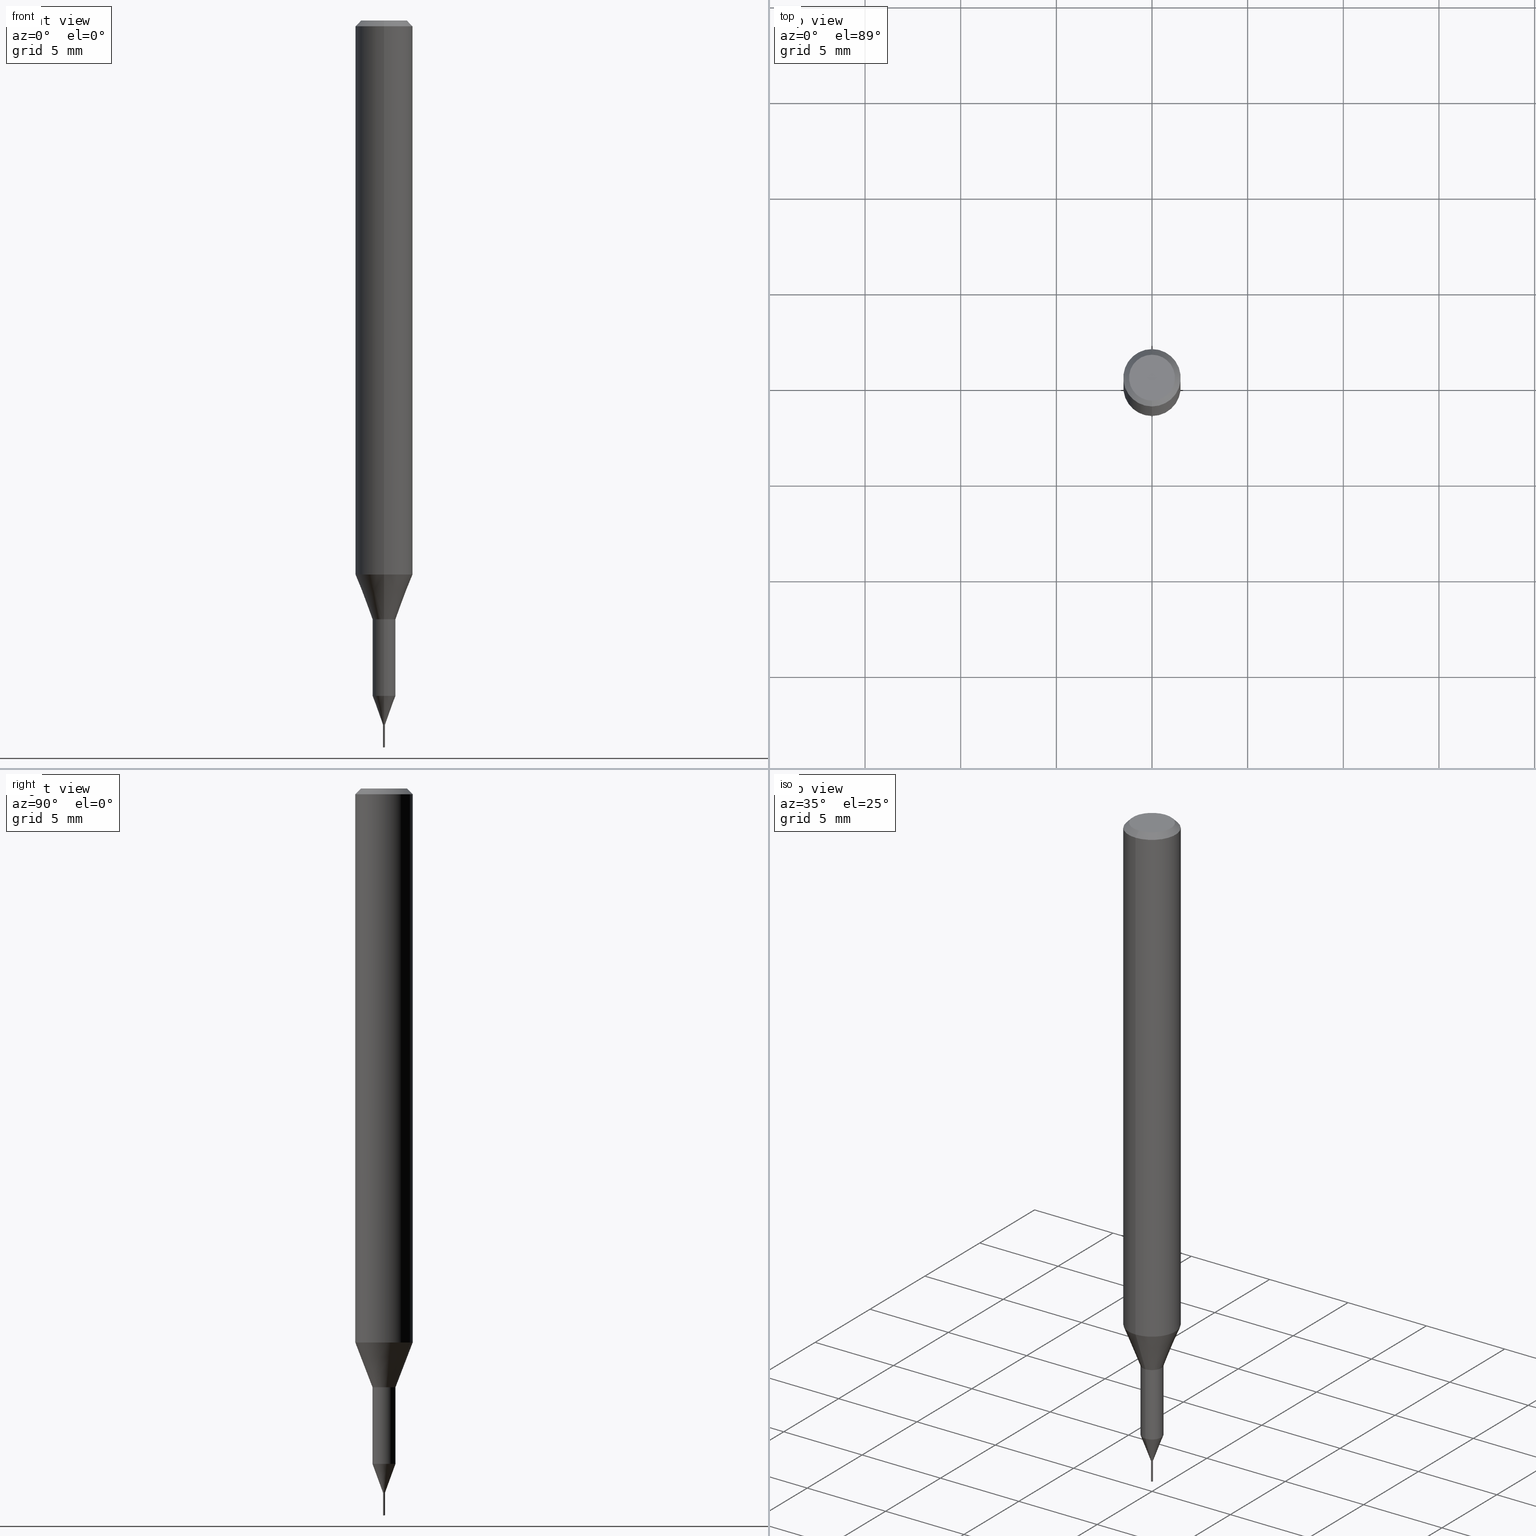
[diagram: canonical four-view strip — front | top / right | iso, engineering-drawing reading convention]
A machine part, canonical four-view strip (front | top / right | iso — engineering-drawing reading convention). The complete STEP part file that produces these views, byte-faithful:
ISO-10303-21;
HEADER;
FILE_DESCRIPTION(('no description'),'unknown implementation level');
FILE_NAME('C-UMD2011-012-Huellk.stp','  ',('CIMSOURCE GmbH'),('CADClick - KiM GmbH - www.kimweb.de'),'unknown preprocess','ACIS','unknown authorization');
FILE_SCHEMA(('automotive_design'));
ENDSEC;
DATA;
#1=MECHANICAL_DESIGN_GEOMETRIC_PRESENTATION_REPRESENTATION(' ',(#14,#15,#16,#17,#18,#19,#20,#21,#22,#23,#24,#25,#26,#27,#28,#29,#30,#31,#32,#33,#34,#35,#36,#37,#38,#39,#40,#41,#42,#43,#44,#45,#46,#47,#48,#49,#50,#51,#52,#53,#54,#55,#56,#57,#58,#59,#60,#61,#62,#63,#64,#65,#66,#67,#68,#69,#70,#71,#72,#73,#74,#75,#76,#77,#78,#79,#80,#81,#82,#83,#84,#85,#86,#87,#88,#89,#90,#91,#92),#10);
#2=PRODUCT_DEFINITION_CONTEXT('',#93,'design');
#3=APPLICATION_PROTOCOL_DEFINITION('INTERNATIONAL STANDARD','automotive_design',1994,#93);
#4=PRODUCT_CATEGORY_RELATIONSHIP('NONE','NONE',#94,#95);
#5=SHAPE_DEFINITION_REPRESENTATION(#96,#97);
#6=PRODUCT_DEFINITION_CONTEXT('',#98,'design');
#7=APPLICATION_PROTOCOL_DEFINITION('INTERNATIONAL STANDARD','automotive_design',1994,#98);
#8=PRODUCT_CATEGORY_RELATIONSHIP('NONE','NONE',#99,#100);
#9=SHAPE_DEFINITION_REPRESENTATION(#101,#102);
#10= (GEOMETRIC_REPRESENTATION_CONTEXT(3)GLOBAL_UNCERTAINTY_ASSIGNED_CONTEXT((#105))GLOBAL_UNIT_ASSIGNED_CONTEXT((#107,#108,#109))REPRESENTATION_CONTEXT('NONE','WORKSPACE'));
#14=STYLED_ITEM('',(#111),#112);
#15=STYLED_ITEM('',(#113),#114);
#16=STYLED_ITEM('',(#115),#116);
#17=STYLED_ITEM('',(#117),#118);
#18=STYLED_ITEM('',(#119),#120);
#19=STYLED_ITEM('',(#121),#122);
#20=STYLED_ITEM('',(#123),#124);
#21=STYLED_ITEM('',(#125),#126);
#22=STYLED_ITEM('',(#127),#128);
#23=STYLED_ITEM('',(#129),#130);
#24=STYLED_ITEM('',(#131),#132);
#25=STYLED_ITEM('',(#133),#134);
#26=STYLED_ITEM('',(#135),#136);
#27=STYLED_ITEM('',(#137),#138);
#28=STYLED_ITEM('',(#139),#140);
#29=STYLED_ITEM('',(#141),#142);
#30=STYLED_ITEM('',(#143),#144);
#31=STYLED_ITEM('',(#145),#146);
#32=STYLED_ITEM('',(#147),#148);
#33=STYLED_ITEM('',(#149),#150);
#34=STYLED_ITEM('',(#151),#152);
#35=STYLED_ITEM('',(#153),#154);
#36=STYLED_ITEM('',(#155),#156);
#37=STYLED_ITEM('',(#157),#158);
#38=STYLED_ITEM('',(#159),#160);
#39=STYLED_ITEM('',(#161),#162);
#40=STYLED_ITEM('',(#163),#164);
#41=STYLED_ITEM('',(#165),#166);
#42=STYLED_ITEM('',(#167),#168);
#43=STYLED_ITEM('',(#169),#170);
#44=STYLED_ITEM('',(#171),#172);
#45=STYLED_ITEM('',(#173),#174);
#46=STYLED_ITEM('',(#175),#176);
#47=STYLED_ITEM('',(#177),#178);
#48=STYLED_ITEM('',(#179),#180);
#49=STYLED_ITEM('',(#181),#182);
#50=STYLED_ITEM('',(#183),#184);
#51=STYLED_ITEM('',(#185),#186);
#52=STYLED_ITEM('',(#187),#188);
#53=STYLED_ITEM('',(#189),#190);
#54=STYLED_ITEM('',(#191),#192);
#55=STYLED_ITEM('',(#193),#194);
#56=STYLED_ITEM('',(#195),#196);
#57=STYLED_ITEM('',(#197),#198);
#58=STYLED_ITEM('',(#199),#200);
#59=STYLED_ITEM('',(#201),#202);
#60=STYLED_ITEM('',(#203),#204);
#61=STYLED_ITEM('',(#205),#206);
#62=STYLED_ITEM('',(#207),#208);
#63=STYLED_ITEM('',(#209),#210);
#64=STYLED_ITEM('',(#211),#212);
#65=STYLED_ITEM('',(#213),#214);
#66=STYLED_ITEM('',(#215),#216);
#67=STYLED_ITEM('',(#217),#218);
#68=STYLED_ITEM('',(#219),#220);
#69=STYLED_ITEM('',(#221),#222);
#70=STYLED_ITEM('',(#223),#224);
#71=STYLED_ITEM('',(#225),#226);
#72=STYLED_ITEM('',(#227),#228);
#73=STYLED_ITEM('',(#229),#230);
#74=STYLED_ITEM('',(#231),#232);
#75=STYLED_ITEM('',(#233),#234);
#76=STYLED_ITEM('',(#235),#236);
#77=STYLED_ITEM('',(#237),#238);
#78=STYLED_ITEM('',(#239),#240);
#79=STYLED_ITEM('',(#241),#242);
#80=STYLED_ITEM('',(#243),#244);
#81=STYLED_ITEM('',(#245),#246);
#82=STYLED_ITEM('',(#247),#248);
#83=STYLED_ITEM('',(#249),#250);
#84=STYLED_ITEM('',(#251),#252);
#85=STYLED_ITEM('',(#253),#254);
#86=STYLED_ITEM('',(#255),#256);
#87=STYLED_ITEM('',(#257),#258);
#88=STYLED_ITEM('',(#259),#260);
#89=STYLED_ITEM('',(#261),#262);
#90=STYLED_ITEM('',(#263),#264);
#91=STYLED_ITEM('',(#265),#266);
#92=STYLED_ITEM('',(#267),#268);
#93=APPLICATION_CONTEXT(' ');
#94=PRODUCT_CATEGORY('part','NONE');
#95=PRODUCT_RELATED_PRODUCT_CATEGORY('detail',' ',(#269));
#96=PRODUCT_DEFINITION_SHAPE('NONE','NONE',#270);
#97=ADVANCED_BREP_SHAPE_REPRESENTATION('1',(#216,#271),#10);
#98=APPLICATION_CONTEXT(' ');
#99=PRODUCT_CATEGORY('part','NONE');
#100=PRODUCT_RELATED_PRODUCT_CATEGORY('detail',' ',(#272));
#101=PRODUCT_DEFINITION_SHAPE('NONE','NONE',#273);
#102=ADVANCED_BREP_SHAPE_REPRESENTATION('2',(#118,#274),#10);
#105=UNCERTAINTY_MEASURE_WITH_UNIT(LENGTH_MEASURE(1.0E-006),#107,'','');
#107= (CONVERSION_BASED_UNIT('MILLIMETRE',#277)LENGTH_UNIT()NAMED_UNIT(#280));
#108= (NAMED_UNIT(#282)PLANE_ANGLE_UNIT()SI_UNIT($,.RADIAN.));
#109= (NAMED_UNIT(#282)SOLID_ANGLE_UNIT()SI_UNIT($,.STERADIAN.));
#111=PRESENTATION_STYLE_ASSIGNMENT((#288));
#112=EDGE_CURVE('',#142,#258,#289,.T.);
#113=PRESENTATION_STYLE_ASSIGNMENT((#290));
#114=EDGE_CURVE('',#144,#232,#291,.T.);
#115=PRESENTATION_STYLE_ASSIGNMENT((#292));
#116=EDGE_CURVE('',#196,#148,#293,.T.);
#117=PRESENTATION_STYLE_ASSIGNMENT((#294));
#118=MANIFOLD_SOLID_BREP('2',#295);
#119=PRESENTATION_STYLE_ASSIGNMENT((#296));
#120=EDGE_CURVE('',#172,#214,#297,.T.);
#121=PRESENTATION_STYLE_ASSIGNMENT((#298));
#122=EDGE_CURVE('',#236,#196,#299,.T.);
#123=PRESENTATION_STYLE_ASSIGNMENT((#300));
#124=ADVANCED_FACE('',(#301),#302,.T.);
#125=PRESENTATION_STYLE_ASSIGNMENT((#303));
#126=ADVANCED_FACE('',(#304),#305,.T.);
#127=PRESENTATION_STYLE_ASSIGNMENT((#306));
#128=EDGE_CURVE('',#258,#246,#307,.T.);
#129=PRESENTATION_STYLE_ASSIGNMENT((#308));
#130=EDGE_CURVE('',#268,#214,#309,.T.);
#131=PRESENTATION_STYLE_ASSIGNMENT((#310));
#132=ADVANCED_FACE('',(#311),#312,.T.);
#133=PRESENTATION_STYLE_ASSIGNMENT((#313));
#134=VERTEX_POINT('',#314);
#135=PRESENTATION_STYLE_ASSIGNMENT((#315));
#136=ADVANCED_FACE('',(#316),#317,.T.);
#137=PRESENTATION_STYLE_ASSIGNMENT((#318));
#138=EDGE_CURVE('',#134,#172,#319,.T.);
#139=PRESENTATION_STYLE_ASSIGNMENT((#320));
#140=EDGE_CURVE('',#258,#142,#321,.T.);
#141=PRESENTATION_STYLE_ASSIGNMENT((#322));
#142=VERTEX_POINT('',#323);
#143=PRESENTATION_STYLE_ASSIGNMENT((#324));
#144=VERTEX_POINT('',#325);
#145=PRESENTATION_STYLE_ASSIGNMENT((#326));
#146=ADVANCED_FACE('',(#327,#328),#329,.T.);
#147=PRESENTATION_STYLE_ASSIGNMENT((#330));
#148=VERTEX_POINT('',#331);
#149=PRESENTATION_STYLE_ASSIGNMENT((#332));
#150=EDGE_CURVE('',#222,#208,#333,.T.);
#151=PRESENTATION_STYLE_ASSIGNMENT((#334));
#152=EDGE_CURVE('',#238,#246,#335,.T.);
#153=PRESENTATION_STYLE_ASSIGNMENT((#336));
#154=ADVANCED_FACE('',(#337),#338,.T.);
#155=PRESENTATION_STYLE_ASSIGNMENT((#339));
#156=VERTEX_POINT('',#340);
#157=PRESENTATION_STYLE_ASSIGNMENT((#341));
#158=ADVANCED_FACE('',(#342),#343,.T.);
#159=PRESENTATION_STYLE_ASSIGNMENT((#344));
#160=VERTEX_POINT('',#345);
#161=PRESENTATION_STYLE_ASSIGNMENT((#346));
#162=EDGE_CURVE('',#134,#222,#347,.T.);
#163=PRESENTATION_STYLE_ASSIGNMENT((#348));
#164=EDGE_CURVE('',#176,#182,#349,.T.);
#165=PRESENTATION_STYLE_ASSIGNMENT((#350));
#166=EDGE_CURVE('',#214,#172,#351,.T.);
#167=PRESENTATION_STYLE_ASSIGNMENT((#352));
#168=ADVANCED_FACE('',(#353),#354,.T.);
#169=PRESENTATION_STYLE_ASSIGNMENT((#355));
#170=ADVANCED_FACE('',(#356),#357,.T.);
#171=PRESENTATION_STYLE_ASSIGNMENT((#358));
#172=VERTEX_POINT('',#359);
#173=PRESENTATION_STYLE_ASSIGNMENT((#360));
#174=EDGE_CURVE('',#214,#222,#361,.T.);
#175=PRESENTATION_STYLE_ASSIGNMENT((#362));
#176=VERTEX_POINT('',#363);
#177=PRESENTATION_STYLE_ASSIGNMENT((#364));
#178=EDGE_CURVE('',#248,#238,#365,.T.);
#179=PRESENTATION_STYLE_ASSIGNMENT((#366));
#180=ADVANCED_FACE('',(#367),#368,.T.);
#181=PRESENTATION_STYLE_ASSIGNMENT((#369));
#182=VERTEX_POINT('',#370);
#183=PRESENTATION_STYLE_ASSIGNMENT((#371));
#184=ADVANCED_FACE('',(#372),#373,.T.);
#185=PRESENTATION_STYLE_ASSIGNMENT((#374));
#186=EDGE_CURVE('',#160,#208,#375,.T.);
#187=PRESENTATION_STYLE_ASSIGNMENT((#376));
#188=EDGE_CURVE('',#238,#142,#377,.T.);
#189=PRESENTATION_STYLE_ASSIGNMENT((#378));
#190=EDGE_CURVE('',#268,#206,#379,.T.);
#191=PRESENTATION_STYLE_ASSIGNMENT((#380));
#192=ADVANCED_FACE('',(#381),#382,.T.);
#193=PRESENTATION_STYLE_ASSIGNMENT((#383));
#194=EDGE_CURVE('',#208,#160,#384,.T.);
#195=PRESENTATION_STYLE_ASSIGNMENT((#385));
#196=VERTEX_POINT('',#386);
#197=PRESENTATION_STYLE_ASSIGNMENT((#387));
#198=EDGE_CURVE('',#232,#236,#388,.T.);
#199=PRESENTATION_STYLE_ASSIGNMENT((#389));
#200=EDGE_CURVE('',#222,#134,#390,.T.);
#201=PRESENTATION_STYLE_ASSIGNMENT((#391));
#202=ADVANCED_FACE('',(#392),#393,.T.);
#203=PRESENTATION_STYLE_ASSIGNMENT((#394));
#204=ADVANCED_FACE('',(#395),#396,.T.);
#205=PRESENTATION_STYLE_ASSIGNMENT((#397));
#206=VERTEX_POINT('',#398);
#207=PRESENTATION_STYLE_ASSIGNMENT((#399));
#208=VERTEX_POINT('',#400);
#209=PRESENTATION_STYLE_ASSIGNMENT((#401));
#210=EDGE_CURVE('',#236,#182,#402,.T.);
#211=PRESENTATION_STYLE_ASSIGNMENT((#403));
#212=EDGE_CURVE('',#182,#176,#404,.T.);
#213=PRESENTATION_STYLE_ASSIGNMENT((#405));
#214=VERTEX_POINT('',#406);
#215=PRESENTATION_STYLE_ASSIGNMENT((#407));
#216=MANIFOLD_SOLID_BREP('1',#408);
#217=PRESENTATION_STYLE_ASSIGNMENT((#409));
#218=ADVANCED_FACE('',(#410),#411,.T.);
#219=PRESENTATION_STYLE_ASSIGNMENT((#412));
#220=EDGE_CURVE('',#160,#134,#413,.T.);
#221=PRESENTATION_STYLE_ASSIGNMENT((#414));
#222=VERTEX_POINT('',#415);
#223=PRESENTATION_STYLE_ASSIGNMENT((#416));
#224=EDGE_CURVE('',#246,#238,#417,.T.);
#225=PRESENTATION_STYLE_ASSIGNMENT((#418));
#226=EDGE_CURVE('',#176,#196,#419,.T.);
#227=PRESENTATION_STYLE_ASSIGNMENT((#420));
#228=EDGE_CURVE('',#246,#156,#421,.T.);
#229=PRESENTATION_STYLE_ASSIGNMENT((#422));
#230=EDGE_CURVE('',#148,#144,#423,.T.);
#231=PRESENTATION_STYLE_ASSIGNMENT((#424));
#232=VERTEX_POINT('',#425);
#233=PRESENTATION_STYLE_ASSIGNMENT((#426));
#234=EDGE_CURVE('',#248,#156,#427,.T.);
#235=PRESENTATION_STYLE_ASSIGNMENT((#428));
#236=VERTEX_POINT('',#429);
#237=PRESENTATION_STYLE_ASSIGNMENT((#430));
#238=VERTEX_POINT('',#431);
#239=PRESENTATION_STYLE_ASSIGNMENT((#432));
#240=ADVANCED_FACE('',(#433),#434,.T.);
#241=PRESENTATION_STYLE_ASSIGNMENT((#435));
#242=EDGE_CURVE('',#172,#206,#436,.T.);
#243=PRESENTATION_STYLE_ASSIGNMENT((#437));
#244=ADVANCED_FACE('',(#438),#439,.T.);
#245=PRESENTATION_STYLE_ASSIGNMENT((#440));
#246=VERTEX_POINT('',#441);
#247=PRESENTATION_STYLE_ASSIGNMENT((#442));
#248=VERTEX_POINT('',#443);
#249=PRESENTATION_STYLE_ASSIGNMENT((#444));
#250=EDGE_CURVE('',#156,#248,#445,.T.);
#251=PRESENTATION_STYLE_ASSIGNMENT((#446));
#252=ADVANCED_FACE('',(#447),#448,.T.);
#253=PRESENTATION_STYLE_ASSIGNMENT((#449));
#254=EDGE_CURVE('',#206,#268,#450,.T.);
#255=PRESENTATION_STYLE_ASSIGNMENT((#451));
#256=ADVANCED_FACE('',(#452),#453,.T.);
#257=PRESENTATION_STYLE_ASSIGNMENT((#454));
#258=VERTEX_POINT('',#455);
#259=PRESENTATION_STYLE_ASSIGNMENT((#456));
#260=EDGE_CURVE('',#148,#232,#457,.T.);
#261=PRESENTATION_STYLE_ASSIGNMENT((#458));
#262=EDGE_CURVE('',#196,#236,#459,.T.);
#263=PRESENTATION_STYLE_ASSIGNMENT((#460));
#264=EDGE_CURVE('',#232,#148,#461,.T.);
#265=PRESENTATION_STYLE_ASSIGNMENT((#462));
#266=ADVANCED_FACE('',(#463),#464,.T.);
#267=PRESENTATION_STYLE_ASSIGNMENT((#465));
#268=VERTEX_POINT('',#466);
#269=PRODUCT('1','1','PART-1-DESC',(#467));
#270=PRODUCT_DEFINITION('NONE','NONE',#468,#2);
#271=AXIS2_PLACEMENT_3D('',#469,#470,#471);
#272=PRODUCT('2','2','PART-2-DESC',(#472));
#273=PRODUCT_DEFINITION('NONE','NONE',#473,#6);
#274=AXIS2_PLACEMENT_3D('',#474,#475,#476);
#277=LENGTH_MEASURE_WITH_UNIT(LENGTH_MEASURE(1.0),#477);
#280=DIMENSIONAL_EXPONENTS(1.0,0.0,0.0,0.0,0.0,0.0,0.0);
#282=DIMENSIONAL_EXPONENTS(0.0,0.0,0.0,0.0,0.0,0.0,0.0);
#288=CURVE_STYLE('',#478,POSITIVE_LENGTH_MEASURE(1.0E-006),#479);
#289=CIRCLE('',#480,0.0550364028056111);
#290=CURVE_STYLE('',#481,POSITIVE_LENGTH_MEASURE(1.0E-006),#482);
#291=LINE('',#483,#484);
#292=CURVE_STYLE('',#485,POSITIVE_LENGTH_MEASURE(1.0E-006),#486);
#293=LINE('',#487,#488);
#294=SURFACE_STYLE_USAGE(.BOTH.,#489);
#295=CLOSED_SHELL('',(#252,#218,#132,#158,#204,#154,#180));
#296=CURVE_STYLE('',#490,POSITIVE_LENGTH_MEASURE(1.0E-006),#491);
#297=CIRCLE('',#492,1.5);
#298=CURVE_STYLE('',#493,POSITIVE_LENGTH_MEASURE(1.0E-006),#494);
#299=CIRCLE('',#495,0.055);
#300=SURFACE_STYLE_USAGE(.BOTH.,#496);
#301=FACE_OUTER_BOUND('',#497,.T.);
#302=CONICAL_SURFACE('',#498,1.35,0.785398163397447);
#303=SURFACE_STYLE_USAGE(.BOTH.,#499);
#304=FACE_OUTER_BOUND('',#500,.T.);
#305=PLANE('',#501);
#306=CURVE_STYLE('',#502,POSITIVE_LENGTH_MEASURE(1.0E-006),#503);
#307=LINE('',#504,#505);
#308=CURVE_STYLE('',#506,POSITIVE_LENGTH_MEASURE(1.0E-006),#507);
#309=LINE('',#508,#509);
#310=SURFACE_STYLE_USAGE(.BOTH.,#510);
#311=FACE_OUTER_BOUND('',#511,.T.);
#312=CONICAL_SURFACE('',#512,0.0555182030728123,1.47460682041605);
#313=POINT_STYLE(' ',#513,POSITIVE_LENGTH_MEASURE(1.0E-006),#514);
#314=CARTESIAN_POINT('',(0.0,1.5,-0.300000000000001));
#315=SURFACE_STYLE_USAGE(.BOTH.,#515);
#316=FACE_OUTER_BOUND('',#516,.T.);
#317=CYLINDRICAL_SURFACE('',#517,0.59995);
#318=CURVE_STYLE('',#518,POSITIVE_LENGTH_MEASURE(1.0E-006),#519);
#319=LINE('',#520,#521);
#320=CURVE_STYLE('',#522,POSITIVE_LENGTH_MEASURE(1.0E-006),#523);
#321=CIRCLE('',#524,0.0550364028056111);
#322=POINT_STYLE(' ',#525,POSITIVE_LENGTH_MEASURE(1.0E-006),#526);
#323=CARTESIAN_POINT('',(0.0,0.0550364028056111,-36.7999));
#324=POINT_STYLE(' ',#527,POSITIVE_LENGTH_MEASURE(1.0E-006),#528);
#325=CARTESIAN_POINT('',(0.0,0.0,-38.0));
#326=SURFACE_STYLE_USAGE(.BOTH.,#529);
#327=FACE_BOUND('',#530,.T.);
#328=FACE_OUTER_BOUND('',#531,.T.);
#329=PLANE('',#532);
#330=POINT_STYLE(' ',#533,POSITIVE_LENGTH_MEASURE(1.0E-006),#534);
#331=CARTESIAN_POINT('',(-0.055,0.0,-37.98526279));
#332=CURVE_STYLE('',#535,POSITIVE_LENGTH_MEASURE(1.0E-006),#536);
#333=LINE('',#537,#538);
#334=CURVE_STYLE('',#539,POSITIVE_LENGTH_MEASURE(1.0E-006),#540);
#335=CIRCLE('',#541,0.59995);
#336=SURFACE_STYLE_USAGE(.BOTH.,#542);
#337=FACE_OUTER_BOUND('',#543,.T.);
#338=CYLINDRICAL_SURFACE('',#544,0.055);
#339=POINT_STYLE(' ',#545,POSITIVE_LENGTH_MEASURE(1.0E-006),#546);
#340=CARTESIAN_POINT('',(7.34702581975735E-017,-0.59995,-31.3));
#341=SURFACE_STYLE_USAGE(.BOTH.,#547);
#342=FACE_OUTER_BOUND('',#548,.T.);
#343=PLANE('',#549);
#344=POINT_STYLE(' ',#550,POSITIVE_LENGTH_MEASURE(1.0E-006),#551);
#345=CARTESIAN_POINT('',(0.0,1.2,0.0));
#346=CURVE_STYLE('',#552,POSITIVE_LENGTH_MEASURE(1.0E-006),#553);
#347=CIRCLE('',#554,1.5);
#348=CURVE_STYLE('',#555,POSITIVE_LENGTH_MEASURE(1.0E-006),#556);
#349=CIRCLE('',#557,0.0560364061456245);
#350=CURVE_STYLE('',#558,POSITIVE_LENGTH_MEASURE(1.0E-006),#559);
#351=CIRCLE('',#560,1.5);
#352=SURFACE_STYLE_USAGE(.BOTH.,#561);
#353=FACE_OUTER_BOUND('',#562,.T.);
#354=CYLINDRICAL_SURFACE('',#563,0.59995);
#355=SURFACE_STYLE_USAGE(.BOTH.,#564);
#356=FACE_OUTER_BOUND('',#565,.T.);
#357=CONICAL_SURFACE('',#566,1.35,0.785398163397447);
#358=POINT_STYLE(' ',#567,POSITIVE_LENGTH_MEASURE(1.0E-006),#568);
#359=CARTESIAN_POINT('',(0.0,1.5,-28.955));
#360=CURVE_STYLE('',#569,POSITIVE_LENGTH_MEASURE(1.0E-006),#570);
#361=LINE('',#571,#572);
#362=POINT_STYLE(' ',#573,POSITIVE_LENGTH_MEASURE(1.0E-006),#574);
#363=CARTESIAN_POINT('',(-0.0560364061456245,0.0,-36.7999));
#364=CURVE_STYLE('',#575,POSITIVE_LENGTH_MEASURE(1.0E-006),#576);
#365=LINE('',#577,#578);
#366=SURFACE_STYLE_USAGE(.BOTH.,#579);
#367=FACE_OUTER_BOUND('',#580,.T.);
#368=CONICAL_SURFACE('',#581,0.0275,1.30899686407842);
#369=POINT_STYLE(' ',#582,POSITIVE_LENGTH_MEASURE(1.0E-006),#583);
#370=CARTESIAN_POINT('',(0.0560364061456245,6.86225390113031E-018,-36.7999));
#371=SURFACE_STYLE_USAGE(.BOTH.,#584);
#372=FACE_OUTER_BOUND('',#585,.T.);
#373=CYLINDRICAL_SURFACE('',#586,1.5);
#374=CURVE_STYLE('',#587,POSITIVE_LENGTH_MEASURE(1.0E-006),#588);
#375=CIRCLE('',#589,1.2);
#376=CURVE_STYLE('',#590,POSITIVE_LENGTH_MEASURE(1.0E-006),#591);
#377=LINE('',#592,#593);
#378=CURVE_STYLE('',#594,POSITIVE_LENGTH_MEASURE(1.0E-006),#595);
#379=CIRCLE('',#596,0.6);
#380=SURFACE_STYLE_USAGE(.BOTH.,#597);
#381=FACE_OUTER_BOUND('',#598,.T.);
#382=CONICAL_SURFACE('',#599,1.05,0.366459241971866);
#383=CURVE_STYLE('',#600,POSITIVE_LENGTH_MEASURE(1.0E-006),#601);
#384=CIRCLE('',#602,1.2);
#385=POINT_STYLE(' ',#603,POSITIVE_LENGTH_MEASURE(1.0E-006),#604);
#386=CARTESIAN_POINT('',(-0.055,0.0,-36.8));
#387=CURVE_STYLE('',#605,POSITIVE_LENGTH_MEASURE(1.0E-006),#606);
#388=LINE('',#607,#608);
#389=CURVE_STYLE('',#609,POSITIVE_LENGTH_MEASURE(1.0E-006),#610);
#390=CIRCLE('',#611,1.5);
#391=SURFACE_STYLE_USAGE(.BOTH.,#612);
#392=FACE_OUTER_BOUND('',#613,.T.);
#393=CONICAL_SURFACE('',#614,0.327493201402806,0.349116907424928);
#394=SURFACE_STYLE_USAGE(.BOTH.,#615);
#395=FACE_OUTER_BOUND('',#616,.T.);
#396=CONICAL_SURFACE('',#617,0.0555182030728123,1.47460682041605);
#397=POINT_STYLE(' ',#618,POSITIVE_LENGTH_MEASURE(1.0E-006),#619);
#398=CARTESIAN_POINT('',(0.0,0.6,-31.3));
#399=POINT_STYLE(' ',#620,POSITIVE_LENGTH_MEASURE(1.0E-006),#621);
#400=CARTESIAN_POINT('',(1.46952762458685E-016,-1.2,0.0));
#401=CURVE_STYLE('',#622,POSITIVE_LENGTH_MEASURE(1.0E-006),#623);
#402=LINE('',#624,#625);
#403=CURVE_STYLE('',#626,POSITIVE_LENGTH_MEASURE(1.0E-006),#627);
#404=CIRCLE('',#628,0.0560364061456245);
#405=POINT_STYLE(' ',#629,POSITIVE_LENGTH_MEASURE(1.0E-006),#630);
#406=CARTESIAN_POINT('',(1.83690953073357E-016,-1.5,-28.955));
#407=SURFACE_STYLE_USAGE(.BOTH.,#631);
#408=CLOSED_SHELL('',(#202,#168,#192,#240,#124,#126,#170,#184,#244,#146,#136,#266,#256));
#409=SURFACE_STYLE_USAGE(.BOTH.,#632);
#410=FACE_OUTER_BOUND('',#633,.T.);
#411=CYLINDRICAL_SURFACE('',#634,0.055);
#412=CURVE_STYLE('',#635,POSITIVE_LENGTH_MEASURE(1.0E-006),#636);
#413=LINE('',#637,#638);
#414=POINT_STYLE(' ',#639,POSITIVE_LENGTH_MEASURE(1.0E-006),#640);
#415=CARTESIAN_POINT('',(1.83690953073357E-016,-1.5,-0.300000000000001));
#416=CURVE_STYLE('',#641,POSITIVE_LENGTH_MEASURE(1.0E-006),#642);
#417=CIRCLE('',#643,0.59995);
#418=CURVE_STYLE('',#644,POSITIVE_LENGTH_MEASURE(1.0E-006),#645);
#419=LINE('',#646,#647);
#420=CURVE_STYLE('',#648,POSITIVE_LENGTH_MEASURE(1.0E-006),#649);
#421=LINE('',#650,#651);
#422=CURVE_STYLE('',#652,POSITIVE_LENGTH_MEASURE(1.0E-006),#653);
#423=LINE('',#654,#655);
#424=POINT_STYLE(' ',#656,POSITIVE_LENGTH_MEASURE(1.0E-006),#657);
#425=CARTESIAN_POINT('',(0.055,6.73533494602308E-018,-37.98526279));
#426=CURVE_STYLE('',#658,POSITIVE_LENGTH_MEASURE(1.0E-006),#659);
#427=CIRCLE('',#660,0.59995);
#428=POINT_STYLE(' ',#661,POSITIVE_LENGTH_MEASURE(1.0E-006),#662);
#429=CARTESIAN_POINT('',(0.055,6.73533494602308E-018,-36.8));
#430=POINT_STYLE(' ',#663,POSITIVE_LENGTH_MEASURE(1.0E-006),#664);
#431=CARTESIAN_POINT('',(0.0,0.59995,-35.303));
#432=SURFACE_STYLE_USAGE(.BOTH.,#665);
#433=FACE_OUTER_BOUND('',#666,.T.);
#434=CYLINDRICAL_SURFACE('',#667,1.5);
#435=CURVE_STYLE('',#668,POSITIVE_LENGTH_MEASURE(1.0E-006),#669);
#436=LINE('',#670,#671);
#437=SURFACE_STYLE_USAGE(.BOTH.,#672);
#438=FACE_OUTER_BOUND('',#673,.T.);
#439=CONICAL_SURFACE('',#674,1.05,0.366459241971866);
#440=POINT_STYLE(' ',#675,POSITIVE_LENGTH_MEASURE(1.0E-006),#676);
#441=CARTESIAN_POINT('',(7.34702581975735E-017,-0.59995,-35.303));
#442=POINT_STYLE(' ',#677,POSITIVE_LENGTH_MEASURE(1.0E-006),#678);
#443=CARTESIAN_POINT('',(0.0,0.59995,-31.3));
#444=CURVE_STYLE('',#679,POSITIVE_LENGTH_MEASURE(1.0E-006),#680);
#445=CIRCLE('',#681,0.59995);
#446=SURFACE_STYLE_USAGE(.BOTH.,#682);
#447=FACE_OUTER_BOUND('',#683,.T.);
#448=CONICAL_SURFACE('',#684,0.0275,1.30899686407842);
#449=CURVE_STYLE('',#685,POSITIVE_LENGTH_MEASURE(1.0E-006),#686);
#450=CIRCLE('',#687,0.6);
#451=SURFACE_STYLE_USAGE(.BOTH.,#688);
#452=FACE_OUTER_BOUND('',#689,.T.);
#453=PLANE('',#690);
#454=POINT_STYLE(' ',#691,POSITIVE_LENGTH_MEASURE(1.0E-006),#692);
#455=CARTESIAN_POINT('',(6.73979285672791E-018,-0.0550364028056111,-36.7999));
#456=CURVE_STYLE('',#693,POSITIVE_LENGTH_MEASURE(1.0E-006),#694);
#457=CIRCLE('',#695,0.055);
#458=CURVE_STYLE('',#696,POSITIVE_LENGTH_MEASURE(1.0E-006),#697);
#459=CIRCLE('',#698,0.055);
#460=CURVE_STYLE('',#699,POSITIVE_LENGTH_MEASURE(1.0E-006),#700);
#461=CIRCLE('',#701,0.055);
#462=SURFACE_STYLE_USAGE(.BOTH.,#702);
#463=FACE_OUTER_BOUND('',#703,.T.);
#464=CONICAL_SURFACE('',#704,0.327493201402806,0.349116907424928);
#465=POINT_STYLE(' ',#705,POSITIVE_LENGTH_MEASURE(1.0E-006),#706);
#466=CARTESIAN_POINT('',(7.34763812293426E-017,-0.6,-31.3));
#467=PRODUCT_CONTEXT('',#93,'mechanical');
#468=PRODUCT_DEFINITION_FORMATION_WITH_SPECIFIED_SOURCE(' ','NONE',#269,.NOT_KNOWN.);
#469=CARTESIAN_POINT('',(0.0,0.0,0.0));
#470=DIRECTION('',(0.0,0.0,1.0));
#471=DIRECTION('',(1.0,0.0,0.0));
#472=PRODUCT_CONTEXT('',#98,'mechanical');
#473=PRODUCT_DEFINITION_FORMATION_WITH_SPECIFIED_SOURCE(' ','NONE',#272,.NOT_KNOWN.);
#474=CARTESIAN_POINT('',(0.0,0.0,0.0));
#475=DIRECTION('',(0.0,0.0,1.0));
#476=DIRECTION('',(1.0,0.0,0.0));
#477= (NAMED_UNIT(#280)LENGTH_UNIT()SI_UNIT(.MILLI.,.METRE.));
#478=DRAUGHTING_PRE_DEFINED_CURVE_FONT('continuous');
#479=COLOUR_RGB('',0.498039215803146,0.498039215803146,0.498039215803146);
#480=AXIS2_PLACEMENT_3D('',#708,#709,#710);
#481=DRAUGHTING_PRE_DEFINED_CURVE_FONT('continuous');
#482=COLOUR_RGB('',0.800000011920929,0.800000011920929,0.800000011920929);
#483=CARTESIAN_POINT('',(0.0275,3.36766747301154E-018,-37.992631395));
#484=VECTOR('',#711,1.0);
#485=DRAUGHTING_PRE_DEFINED_CURVE_FONT('continuous');
#486=COLOUR_RGB('',0.800000011920929,0.800000011920929,0.800000011920929);
#487=CARTESIAN_POINT('',(-0.055,-6.73533494602308E-018,-37.392631395));
#488=VECTOR('',#712,1.0);
#489=SURFACE_SIDE_STYLE('',(#713));
#490=DRAUGHTING_PRE_DEFINED_CURVE_FONT('continuous');
#491=COLOUR_RGB('',0.498039215803146,0.498039215803146,0.498039215803146);
#492=AXIS2_PLACEMENT_3D('',#714,#715,#716);
#493=DRAUGHTING_PRE_DEFINED_CURVE_FONT('continuous');
#494=COLOUR_RGB('',0.800000011920929,0.800000011920929,0.800000011920929);
#495=AXIS2_PLACEMENT_3D('',#717,#718,#719);
#496=SURFACE_SIDE_STYLE('',(#720));
#497=EDGE_LOOP('',(#721,#722,#723,#724));
#498=AXIS2_PLACEMENT_3D('',#725,#726,#727);
#499=SURFACE_SIDE_STYLE('',(#728));
#500=EDGE_LOOP('',(#729,#730));
#501=AXIS2_PLACEMENT_3D('',#731,#732,#733);
#502=DRAUGHTING_PRE_DEFINED_CURVE_FONT('continuous');
#503=COLOUR_RGB('',0.498039215803146,0.498039215803146,0.498039215803146);
#504=CARTESIAN_POINT('',(4.01050255271507E-017,-0.327493201402806,-36.05145));
#505=VECTOR('',#734,1.0);
#506=DRAUGHTING_PRE_DEFINED_CURVE_FONT('continuous');
#507=COLOUR_RGB('',0.498039215803146,0.498039215803146,0.498039215803146);
#508=CARTESIAN_POINT('',(1.2858366715135E-016,-1.05,-30.1275));
#509=VECTOR('',#735,1.0);
#510=SURFACE_SIDE_STYLE('',(#736));
#511=EDGE_LOOP('',(#737,#738,#739,#740));
#512=AXIS2_PLACEMENT_3D('',#741,#742,#743);
#513=PRE_DEFINED_MARKER('');
#514=COLOUR_RGB('',0.498039215803146,0.498039215803146,0.498039215803146);
#515=SURFACE_SIDE_STYLE('',(#744));
#516=EDGE_LOOP('',(#745,#746,#747,#748));
#517=AXIS2_PLACEMENT_3D('',#749,#750,#751);
#518=DRAUGHTING_PRE_DEFINED_CURVE_FONT('continuous');
#519=COLOUR_RGB('',0.498039215803146,0.498039215803146,0.498039215803146);
#520=CARTESIAN_POINT('',(-1.83690953073357E-016,1.5,-14.6275));
#521=VECTOR('',#752,1.0);
#522=DRAUGHTING_PRE_DEFINED_CURVE_FONT('continuous');
#523=COLOUR_RGB('',0.498039215803146,0.498039215803146,0.498039215803146);
#524=AXIS2_PLACEMENT_3D('',#753,#754,#755);
#525=PRE_DEFINED_MARKER('');
#526=COLOUR_RGB('',0.498039215803146,0.498039215803146,0.498039215803146);
#527=PRE_DEFINED_MARKER('');
#528=COLOUR_RGB('',0.800000011920929,0.800000011920929,0.800000011920929);
#529=SURFACE_SIDE_STYLE('',(#756));
#530=EDGE_LOOP('',(#757,#758));
#531=EDGE_LOOP('',(#759,#760));
#532=AXIS2_PLACEMENT_3D('',#761,#762,#763);
#533=PRE_DEFINED_MARKER('');
#534=COLOUR_RGB('',0.800000011920929,0.800000011920929,0.800000011920929);
#535=DRAUGHTING_PRE_DEFINED_CURVE_FONT('continuous');
#536=COLOUR_RGB('',0.498039215803146,0.498039215803146,0.498039215803146);
#537=CARTESIAN_POINT('',(1.65321857766021E-016,-1.35,-0.149999999999999));
#538=VECTOR('',#764,1.0);
#539=DRAUGHTING_PRE_DEFINED_CURVE_FONT('continuous');
#540=COLOUR_RGB('',0.498039215803146,0.498039215803146,0.498039215803146);
#541=AXIS2_PLACEMENT_3D('',#765,#766,#767);
#542=SURFACE_SIDE_STYLE('',(#768));
#543=EDGE_LOOP('',(#769,#770,#771,#772));
#544=AXIS2_PLACEMENT_3D('',#773,#774,#775);
#545=PRE_DEFINED_MARKER('');
#546=COLOUR_RGB('',0.498039215803146,0.498039215803146,0.498039215803146);
#547=SURFACE_SIDE_STYLE('',(#776));
#548=EDGE_LOOP('',(#777,#778));
#549=AXIS2_PLACEMENT_3D('',#779,#780,#781);
#550=PRE_DEFINED_MARKER('');
#551=COLOUR_RGB('',0.498039215803146,0.498039215803146,0.498039215803146);
#552=DRAUGHTING_PRE_DEFINED_CURVE_FONT('continuous');
#553=COLOUR_RGB('',0.498039215803146,0.498039215803146,0.498039215803146);
#554=AXIS2_PLACEMENT_3D('',#782,#783,#784);
#555=DRAUGHTING_PRE_DEFINED_CURVE_FONT('continuous');
#556=COLOUR_RGB('',0.800000011920929,0.800000011920929,0.800000011920929);
#557=AXIS2_PLACEMENT_3D('',#785,#786,#787);
#558=DRAUGHTING_PRE_DEFINED_CURVE_FONT('continuous');
#559=COLOUR_RGB('',0.498039215803146,0.498039215803146,0.498039215803146);
#560=AXIS2_PLACEMENT_3D('',#788,#789,#790);
#561=SURFACE_SIDE_STYLE('',(#791));
#562=EDGE_LOOP('',(#792,#793,#794,#795));
#563=AXIS2_PLACEMENT_3D('',#796,#797,#798);
#564=SURFACE_SIDE_STYLE('',(#799));
#565=EDGE_LOOP('',(#800,#801,#802,#803));
#566=AXIS2_PLACEMENT_3D('',#804,#805,#806);
#567=PRE_DEFINED_MARKER('');
#568=COLOUR_RGB('',0.498039215803146,0.498039215803146,0.498039215803146);
#569=DRAUGHTING_PRE_DEFINED_CURVE_FONT('continuous');
#570=COLOUR_RGB('',0.498039215803146,0.498039215803146,0.498039215803146);
#571=CARTESIAN_POINT('',(1.83690953073357E-016,-1.5,-14.6275));
#572=VECTOR('',#807,1.0);
#573=PRE_DEFINED_MARKER('');
#574=COLOUR_RGB('',0.800000011920929,0.800000011920929,0.800000011920929);
#575=DRAUGHTING_PRE_DEFINED_CURVE_FONT('continuous');
#576=COLOUR_RGB('',0.498039215803146,0.498039215803146,0.498039215803146);
#577=CARTESIAN_POINT('',(-7.34702581975735E-017,0.59995,-33.3015));
#578=VECTOR('',#808,1.0);
#579=SURFACE_SIDE_STYLE('',(#809));
#580=EDGE_LOOP('',(#810,#811,#812));
#581=AXIS2_PLACEMENT_3D('',#813,#814,#815);
#582=PRE_DEFINED_MARKER('');
#583=COLOUR_RGB('',0.800000011920929,0.800000011920929,0.800000011920929);
#584=SURFACE_SIDE_STYLE('',(#816));
#585=EDGE_LOOP('',(#817,#818,#819,#820));
#586=AXIS2_PLACEMENT_3D('',#821,#822,#823);
#587=DRAUGHTING_PRE_DEFINED_CURVE_FONT('continuous');
#588=COLOUR_RGB('',0.498039215803146,0.498039215803146,0.498039215803146);
#589=AXIS2_PLACEMENT_3D('',#824,#825,#826);
#590=DRAUGHTING_PRE_DEFINED_CURVE_FONT('continuous');
#591=COLOUR_RGB('',0.498039215803146,0.498039215803146,0.498039215803146);
#592=CARTESIAN_POINT('',(-4.01050255271507E-017,0.327493201402806,-36.05145));
#593=VECTOR('',#827,1.0);
#594=DRAUGHTING_PRE_DEFINED_CURVE_FONT('continuous');
#595=COLOUR_RGB('',0.498039215803146,0.498039215803146,0.498039215803146);
#596=AXIS2_PLACEMENT_3D('',#828,#829,#830);
#597=SURFACE_SIDE_STYLE('',(#831));
#598=EDGE_LOOP('',(#832,#833,#834,#835));
#599=AXIS2_PLACEMENT_3D('',#836,#837,#838);
#600=DRAUGHTING_PRE_DEFINED_CURVE_FONT('continuous');
#601=COLOUR_RGB('',0.498039215803146,0.498039215803146,0.498039215803146);
#602=AXIS2_PLACEMENT_3D('',#839,#840,#841);
#603=PRE_DEFINED_MARKER('');
#604=COLOUR_RGB('',0.800000011920929,0.800000011920929,0.800000011920929);
#605=DRAUGHTING_PRE_DEFINED_CURVE_FONT('continuous');
#606=COLOUR_RGB('',0.800000011920929,0.800000011920929,0.800000011920929);
#607=CARTESIAN_POINT('',(0.055,6.73533494602308E-018,-37.392631395));
#608=VECTOR('',#842,1.0);
#609=DRAUGHTING_PRE_DEFINED_CURVE_FONT('continuous');
#610=COLOUR_RGB('',0.498039215803146,0.498039215803146,0.498039215803146);
#611=AXIS2_PLACEMENT_3D('',#843,#844,#845);
#612=SURFACE_SIDE_STYLE('',(#846));
#613=EDGE_LOOP('',(#847,#848,#849,#850));
#614=AXIS2_PLACEMENT_3D('',#851,#852,#853);
#615=SURFACE_SIDE_STYLE('',(#854));
#616=EDGE_LOOP('',(#855,#856,#857,#858));
#617=AXIS2_PLACEMENT_3D('',#859,#860,#861);
#618=PRE_DEFINED_MARKER('');
#619=COLOUR_RGB('',0.498039215803146,0.498039215803146,0.498039215803146);
#620=PRE_DEFINED_MARKER('');
#621=COLOUR_RGB('',0.498039215803146,0.498039215803146,0.498039215803146);
#622=DRAUGHTING_PRE_DEFINED_CURVE_FONT('continuous');
#623=COLOUR_RGB('',0.800000011920929,0.800000011920929,0.800000011920929);
#624=CARTESIAN_POINT('',(0.0555182030728123,6.79879442357669E-018,-36.79995));
#625=VECTOR('',#862,1.0);
#626=DRAUGHTING_PRE_DEFINED_CURVE_FONT('continuous');
#627=COLOUR_RGB('',0.800000011920929,0.800000011920929,0.800000011920929);
#628=AXIS2_PLACEMENT_3D('',#863,#864,#865);
#629=PRE_DEFINED_MARKER('');
#630=COLOUR_RGB('',0.498039215803146,0.498039215803146,0.498039215803146);
#631=SURFACE_SIDE_STYLE('',(#866));
#632=SURFACE_SIDE_STYLE('',(#867));
#633=EDGE_LOOP('',(#868,#869,#870,#871));
#634=AXIS2_PLACEMENT_3D('',#872,#873,#874);
#635=DRAUGHTING_PRE_DEFINED_CURVE_FONT('continuous');
#636=COLOUR_RGB('',0.498039215803146,0.498039215803146,0.498039215803146);
#637=CARTESIAN_POINT('',(-1.65321857766021E-016,1.35,-0.149999999999999));
#638=VECTOR('',#875,1.0);
#639=PRE_DEFINED_MARKER('');
#640=COLOUR_RGB('',0.498039215803146,0.498039215803146,0.498039215803146);
#641=DRAUGHTING_PRE_DEFINED_CURVE_FONT('continuous');
#642=COLOUR_RGB('',0.498039215803146,0.498039215803146,0.498039215803146);
#643=AXIS2_PLACEMENT_3D('',#876,#877,#878);
#644=DRAUGHTING_PRE_DEFINED_CURVE_FONT('continuous');
#645=COLOUR_RGB('',0.800000011920929,0.800000011920929,0.800000011920929);
#646=CARTESIAN_POINT('',(-0.0555182030728123,-6.79879442357669E-018,-36.79995));
#647=VECTOR('',#879,1.0);
#648=DRAUGHTING_PRE_DEFINED_CURVE_FONT('continuous');
#649=COLOUR_RGB('',0.498039215803146,0.498039215803146,0.498039215803146);
#650=CARTESIAN_POINT('',(7.34702581975735E-017,-0.59995,-33.3015));
#651=VECTOR('',#880,1.0);
#652=DRAUGHTING_PRE_DEFINED_CURVE_FONT('continuous');
#653=COLOUR_RGB('',0.800000011920929,0.800000011920929,0.800000011920929);
#654=CARTESIAN_POINT('',(-0.0275,-3.36766747301154E-018,-37.992631395));
#655=VECTOR('',#881,1.0);
#656=PRE_DEFINED_MARKER('');
#657=COLOUR_RGB('',0.800000011920929,0.800000011920929,0.800000011920929);
#658=DRAUGHTING_PRE_DEFINED_CURVE_FONT('continuous');
#659=COLOUR_RGB('',0.498039215803146,0.498039215803146,0.498039215803146);
#660=AXIS2_PLACEMENT_3D('',#882,#883,#884);
#661=PRE_DEFINED_MARKER('');
#662=COLOUR_RGB('',0.800000011920929,0.800000011920929,0.800000011920929);
#663=PRE_DEFINED_MARKER('');
#664=COLOUR_RGB('',0.498039215803146,0.498039215803146,0.498039215803146);
#665=SURFACE_SIDE_STYLE('',(#885));
#666=EDGE_LOOP('',(#886,#887,#888,#889));
#667=AXIS2_PLACEMENT_3D('',#890,#891,#892);
#668=DRAUGHTING_PRE_DEFINED_CURVE_FONT('continuous');
#669=COLOUR_RGB('',0.498039215803146,0.498039215803146,0.498039215803146);
#670=CARTESIAN_POINT('',(-1.2858366715135E-016,1.05,-30.1275));
#671=VECTOR('',#893,1.0);
#672=SURFACE_SIDE_STYLE('',(#894));
#673=EDGE_LOOP('',(#895,#896,#897,#898));
#674=AXIS2_PLACEMENT_3D('',#899,#900,#901);
#675=PRE_DEFINED_MARKER('');
#676=COLOUR_RGB('',0.498039215803146,0.498039215803146,0.498039215803146);
#677=PRE_DEFINED_MARKER('');
#678=COLOUR_RGB('',0.498039215803146,0.498039215803146,0.498039215803146);
#679=DRAUGHTING_PRE_DEFINED_CURVE_FONT('continuous');
#680=COLOUR_RGB('',0.498039215803146,0.498039215803146,0.498039215803146);
#681=AXIS2_PLACEMENT_3D('',#902,#903,#904);
#682=SURFACE_SIDE_STYLE('',(#905));
#683=EDGE_LOOP('',(#906,#907,#908));
#684=AXIS2_PLACEMENT_3D('',#909,#910,#911);
#685=DRAUGHTING_PRE_DEFINED_CURVE_FONT('continuous');
#686=COLOUR_RGB('',0.498039215803146,0.498039215803146,0.498039215803146);
#687=AXIS2_PLACEMENT_3D('',#912,#913,#914);
#688=SURFACE_SIDE_STYLE('',(#915));
#689=EDGE_LOOP('',(#916,#917));
#690=AXIS2_PLACEMENT_3D('',#918,#919,#920);
#691=PRE_DEFINED_MARKER('');
#692=COLOUR_RGB('',0.498039215803146,0.498039215803146,0.498039215803146);
#693=DRAUGHTING_PRE_DEFINED_CURVE_FONT('continuous');
#694=COLOUR_RGB('',0.800000011920929,0.800000011920929,0.800000011920929);
#695=AXIS2_PLACEMENT_3D('',#921,#922,#923);
#696=DRAUGHTING_PRE_DEFINED_CURVE_FONT('continuous');
#697=COLOUR_RGB('',0.800000011920929,0.800000011920929,0.800000011920929);
#698=AXIS2_PLACEMENT_3D('',#924,#925,#926);
#699=DRAUGHTING_PRE_DEFINED_CURVE_FONT('continuous');
#700=COLOUR_RGB('',0.800000011920929,0.800000011920929,0.800000011920929);
#701=AXIS2_PLACEMENT_3D('',#927,#928,#929);
#702=SURFACE_SIDE_STYLE('',(#930));
#703=EDGE_LOOP('',(#931,#932,#933,#934));
#704=AXIS2_PLACEMENT_3D('',#935,#936,#937);
#705=PRE_DEFINED_MARKER('');
#706=COLOUR_RGB('',0.498039215803146,0.498039215803146,0.498039215803146);
#708=CARTESIAN_POINT('',(0.0,0.0,-36.7999));
#709=DIRECTION('',(0.0,0.0,-1.0));
#710=DIRECTION('',(0.0,1.0,0.0));
#711=DIRECTION('',(0.965925806899036,1.18287888044957E-016,0.258819117467098));
#712=DIRECTION('',(0.0,0.0,-1.0));
#713=SURFACE_STYLE_FILL_AREA(#938);
#714=CARTESIAN_POINT('',(0.0,0.0,-28.955));
#715=DIRECTION('',(0.0,0.0,-1.0));
#716=DIRECTION('',(0.0,1.0,0.0));
#717=CARTESIAN_POINT('',(0.0,0.0,-36.8));
#718=DIRECTION('',(0.0,0.0,-1.0));
#719=DIRECTION('',(-1.0,0.0,0.0));
#720=SURFACE_STYLE_FILL_AREA(#939);
#721=ORIENTED_EDGE('',*,*,#220,.F.);
#722=ORIENTED_EDGE('',*,*,#186,.T.);
#723=ORIENTED_EDGE('',*,*,#150,.F.);
#724=ORIENTED_EDGE('',*,*,#162,.F.);
#725=CARTESIAN_POINT('',(0.0,0.0,-0.149999999999999));
#726=DIRECTION('',(0.0,-0.0,-1.0));
#727=DIRECTION('',(0.0,1.0,0.0));
#728=SURFACE_STYLE_FILL_AREA(#940);
#729=ORIENTED_EDGE('',*,*,#186,.F.);
#730=ORIENTED_EDGE('',*,*,#194,.F.);
#731=CARTESIAN_POINT('',(0.0,0.6,0.0));
#732=DIRECTION('',(-0.0,0.0,1.0));
#733=DIRECTION('',(0.0,-1.0,0.0));
#734=DIRECTION('',(4.18898794160112E-017,-0.342068120790488,0.939675157029739));
#735=DIRECTION('',(4.38791184365088E-017,-0.358312026550805,0.93360189140182));
#736=SURFACE_STYLE_FILL_AREA(#941);
#737=ORIENTED_EDGE('',*,*,#226,.F.);
#738=ORIENTED_EDGE('',*,*,#164,.T.);
#739=ORIENTED_EDGE('',*,*,#210,.F.);
#740=ORIENTED_EDGE('',*,*,#262,.F.);
#741=CARTESIAN_POINT('',(0.0,0.0,-36.79995));
#742=DIRECTION('',(-0.0,-0.0,1.0));
#743=DIRECTION('',(-1.0,0.0,0.0));
#744=SURFACE_STYLE_FILL_AREA(#942);
#745=ORIENTED_EDGE('',*,*,#178,.T.);
#746=ORIENTED_EDGE('',*,*,#224,.F.);
#747=ORIENTED_EDGE('',*,*,#228,.T.);
#748=ORIENTED_EDGE('',*,*,#250,.T.);
#749=CARTESIAN_POINT('',(0.0,0.0,-33.3015));
#750=DIRECTION('',(-0.0,-0.0,1.0));
#751=DIRECTION('',(0.0,1.0,0.0));
#752=DIRECTION('',(0.0,0.0,-1.0));
#753=CARTESIAN_POINT('',(0.0,0.0,-36.7999));
#754=DIRECTION('',(0.0,0.0,-1.0));
#755=DIRECTION('',(0.0,1.0,0.0));
#756=SURFACE_STYLE_FILL_AREA(#943);
#757=ORIENTED_EDGE('',*,*,#234,.F.);
#758=ORIENTED_EDGE('',*,*,#250,.F.);
#759=ORIENTED_EDGE('',*,*,#254,.T.);
#760=ORIENTED_EDGE('',*,*,#190,.T.);
#761=CARTESIAN_POINT('',(0.0,0.599975,-31.3));
#762=DIRECTION('',(0.0,0.0,-1.0));
#763=DIRECTION('',(0.0,1.0,0.0));
#764=DIRECTION('',(-8.65927457071934E-017,0.707106781186546,0.707106781186549));
#765=CARTESIAN_POINT('',(0.0,0.0,-35.303));
#766=DIRECTION('',(0.0,0.0,-1.0));
#767=DIRECTION('',(0.0,1.0,0.0));
#768=SURFACE_STYLE_FILL_AREA(#944);
#769=ORIENTED_EDGE('',*,*,#116,.T.);
#770=ORIENTED_EDGE('',*,*,#264,.F.);
#771=ORIENTED_EDGE('',*,*,#198,.T.);
#772=ORIENTED_EDGE('',*,*,#122,.T.);
#773=CARTESIAN_POINT('',(0.0,0.0,-37.392631395));
#774=DIRECTION('',(-0.0,-0.0,1.0));
#775=DIRECTION('',(-1.0,0.0,0.0));
#776=SURFACE_STYLE_FILL_AREA(#945);
#777=ORIENTED_EDGE('',*,*,#164,.F.);
#778=ORIENTED_EDGE('',*,*,#212,.F.);
#779=CARTESIAN_POINT('',(-0.0280182030728123,0.0,-36.7999));
#780=DIRECTION('',(0.0,0.0,1.0));
#781=DIRECTION('',(1.0,0.0,0.0));
#782=CARTESIAN_POINT('',(0.0,0.0,-0.300000000000001));
#783=DIRECTION('',(0.0,0.0,-1.0));
#784=DIRECTION('',(0.0,1.0,0.0));
#785=CARTESIAN_POINT('',(0.0,0.0,-36.7999));
#786=DIRECTION('',(0.0,0.0,-1.0));
#787=DIRECTION('',(-1.0,0.0,0.0));
#788=CARTESIAN_POINT('',(0.0,0.0,-28.955));
#789=DIRECTION('',(0.0,0.0,-1.0));
#790=DIRECTION('',(0.0,1.0,0.0));
#791=SURFACE_STYLE_FILL_AREA(#946);
#792=ORIENTED_EDGE('',*,*,#178,.F.);
#793=ORIENTED_EDGE('',*,*,#234,.T.);
#794=ORIENTED_EDGE('',*,*,#228,.F.);
#795=ORIENTED_EDGE('',*,*,#152,.F.);
#796=CARTESIAN_POINT('',(0.0,0.0,-33.3015));
#797=DIRECTION('',(-0.0,-0.0,1.0));
#798=DIRECTION('',(0.0,1.0,0.0));
#799=SURFACE_STYLE_FILL_AREA(#947);
#800=ORIENTED_EDGE('',*,*,#220,.T.);
#801=ORIENTED_EDGE('',*,*,#200,.F.);
#802=ORIENTED_EDGE('',*,*,#150,.T.);
#803=ORIENTED_EDGE('',*,*,#194,.T.);
#804=CARTESIAN_POINT('',(0.0,0.0,-0.149999999999999));
#805=DIRECTION('',(0.0,-0.0,-1.0));
#806=DIRECTION('',(0.0,1.0,0.0));
#807=DIRECTION('',(-0.0,-0.0,1.0));
#808=DIRECTION('',(0.0,0.0,-1.0));
#809=SURFACE_STYLE_FILL_AREA(#948);
#810=ORIENTED_EDGE('',*,*,#114,.T.);
#811=ORIENTED_EDGE('',*,*,#264,.T.);
#812=ORIENTED_EDGE('',*,*,#230,.T.);
#813=CARTESIAN_POINT('',(0.0,0.0,-37.992631395));
#814=DIRECTION('',(-0.0,-0.0,1.0));
#815=DIRECTION('',(-1.0,0.0,0.0));
#816=SURFACE_STYLE_FILL_AREA(#949);
#817=ORIENTED_EDGE('',*,*,#138,.T.);
#818=ORIENTED_EDGE('',*,*,#166,.F.);
#819=ORIENTED_EDGE('',*,*,#174,.T.);
#820=ORIENTED_EDGE('',*,*,#200,.T.);
#821=CARTESIAN_POINT('',(0.0,0.0,-14.6275));
#822=DIRECTION('',(-0.0,-0.0,1.0));
#823=DIRECTION('',(0.0,1.0,0.0));
#824=CARTESIAN_POINT('',(0.0,0.0,0.0));
#825=DIRECTION('',(0.0,0.0,-1.0));
#826=DIRECTION('',(0.0,1.0,0.0));
#827=DIRECTION('',(4.18898794160112E-017,-0.342068120790488,-0.939675157029739));
#828=CARTESIAN_POINT('',(0.0,0.0,-31.3));
#829=DIRECTION('',(0.0,0.0,-1.0));
#830=DIRECTION('',(0.0,1.0,0.0));
#831=SURFACE_STYLE_FILL_AREA(#950);
#832=ORIENTED_EDGE('',*,*,#242,.F.);
#833=ORIENTED_EDGE('',*,*,#120,.T.);
#834=ORIENTED_EDGE('',*,*,#130,.F.);
#835=ORIENTED_EDGE('',*,*,#254,.F.);
#836=CARTESIAN_POINT('',(0.0,0.0,-30.1275));
#837=DIRECTION('',(-0.0,-0.0,1.0));
#838=DIRECTION('',(0.0,1.0,0.0));
#839=CARTESIAN_POINT('',(0.0,0.0,0.0));
#840=DIRECTION('',(0.0,0.0,-1.0));
#841=DIRECTION('',(0.0,1.0,0.0));
#842=DIRECTION('',(-0.0,-0.0,1.0));
#843=CARTESIAN_POINT('',(0.0,0.0,-0.300000000000001));
#844=DIRECTION('',(0.0,0.0,-1.0));
#845=DIRECTION('',(0.0,1.0,0.0));
#846=SURFACE_STYLE_FILL_AREA(#951);
#847=ORIENTED_EDGE('',*,*,#188,.F.);
#848=ORIENTED_EDGE('',*,*,#152,.T.);
#849=ORIENTED_EDGE('',*,*,#128,.F.);
#850=ORIENTED_EDGE('',*,*,#112,.F.);
#851=CARTESIAN_POINT('',(0.0,0.0,-36.05145));
#852=DIRECTION('',(-0.0,-0.0,1.0));
#853=DIRECTION('',(0.0,1.0,0.0));
#854=SURFACE_STYLE_FILL_AREA(#952);
#855=ORIENTED_EDGE('',*,*,#226,.T.);
#856=ORIENTED_EDGE('',*,*,#122,.F.);
#857=ORIENTED_EDGE('',*,*,#210,.T.);
#858=ORIENTED_EDGE('',*,*,#212,.T.);
#859=CARTESIAN_POINT('',(0.0,0.0,-36.79995));
#860=DIRECTION('',(-0.0,-0.0,1.0));
#861=DIRECTION('',(-1.0,0.0,0.0));
#862=DIRECTION('',(0.995377355302067,1.21894543375383E-016,0.0960412440145545));
#863=CARTESIAN_POINT('',(0.0,0.0,-36.7999));
#864=DIRECTION('',(0.0,0.0,-1.0));
#865=DIRECTION('',(-1.0,0.0,0.0));
#866=SURFACE_STYLE_FILL_AREA(#953);
#867=SURFACE_STYLE_FILL_AREA(#954);
#868=ORIENTED_EDGE('',*,*,#116,.F.);
#869=ORIENTED_EDGE('',*,*,#262,.T.);
#870=ORIENTED_EDGE('',*,*,#198,.F.);
#871=ORIENTED_EDGE('',*,*,#260,.F.);
#872=CARTESIAN_POINT('',(0.0,0.0,-37.392631395));
#873=DIRECTION('',(-0.0,-0.0,1.0));
#874=DIRECTION('',(-1.0,0.0,0.0));
#875=DIRECTION('',(-8.65927457071934E-017,0.707106781186546,-0.707106781186549));
#876=CARTESIAN_POINT('',(0.0,0.0,-35.303));
#877=DIRECTION('',(0.0,0.0,-1.0));
#878=DIRECTION('',(0.0,1.0,0.0));
#879=DIRECTION('',(0.995377355302067,1.21894543375383E-016,-0.0960412440145545));
#880=DIRECTION('',(-0.0,-0.0,1.0));
#881=DIRECTION('',(0.965925806899036,1.18287888044957E-016,-0.258819117467098));
#882=CARTESIAN_POINT('',(0.0,0.0,-31.3));
#883=DIRECTION('',(0.0,0.0,-1.0));
#884=DIRECTION('',(0.0,1.0,0.0));
#885=SURFACE_STYLE_FILL_AREA(#955);
#886=ORIENTED_EDGE('',*,*,#138,.F.);
#887=ORIENTED_EDGE('',*,*,#162,.T.);
#888=ORIENTED_EDGE('',*,*,#174,.F.);
#889=ORIENTED_EDGE('',*,*,#120,.F.);
#890=CARTESIAN_POINT('',(0.0,0.0,-14.6275));
#891=DIRECTION('',(-0.0,-0.0,1.0));
#892=DIRECTION('',(0.0,1.0,0.0));
#893=DIRECTION('',(4.38791184365088E-017,-0.358312026550805,-0.93360189140182));
#894=SURFACE_STYLE_FILL_AREA(#956);
#895=ORIENTED_EDGE('',*,*,#242,.T.);
#896=ORIENTED_EDGE('',*,*,#190,.F.);
#897=ORIENTED_EDGE('',*,*,#130,.T.);
#898=ORIENTED_EDGE('',*,*,#166,.T.);
#899=CARTESIAN_POINT('',(0.0,0.0,-30.1275));
#900=DIRECTION('',(-0.0,-0.0,1.0));
#901=DIRECTION('',(0.0,1.0,0.0));
#902=CARTESIAN_POINT('',(0.0,0.0,-31.3));
#903=DIRECTION('',(0.0,0.0,-1.0));
#904=DIRECTION('',(0.0,1.0,0.0));
#905=SURFACE_STYLE_FILL_AREA(#957);
#906=ORIENTED_EDGE('',*,*,#114,.F.);
#907=ORIENTED_EDGE('',*,*,#230,.F.);
#908=ORIENTED_EDGE('',*,*,#260,.T.);
#909=CARTESIAN_POINT('',(0.0,0.0,-37.992631395));
#910=DIRECTION('',(-0.0,-0.0,1.0));
#911=DIRECTION('',(-1.0,0.0,0.0));
#912=CARTESIAN_POINT('',(0.0,0.0,-31.3));
#913=DIRECTION('',(0.0,0.0,-1.0));
#914=DIRECTION('',(0.0,1.0,0.0));
#915=SURFACE_STYLE_FILL_AREA(#958);
#916=ORIENTED_EDGE('',*,*,#112,.T.);
#917=ORIENTED_EDGE('',*,*,#140,.T.);
#918=CARTESIAN_POINT('',(0.0,0.0275182014028055,-36.7999));
#919=DIRECTION('',(0.0,0.0,-1.0));
#920=DIRECTION('',(0.0,1.0,0.0));
#921=CARTESIAN_POINT('',(0.0,0.0,-37.98526279));
#922=DIRECTION('',(0.0,0.0,-1.0));
#923=DIRECTION('',(-1.0,0.0,0.0));
#924=CARTESIAN_POINT('',(0.0,0.0,-36.8));
#925=DIRECTION('',(0.0,0.0,-1.0));
#926=DIRECTION('',(-1.0,0.0,0.0));
#927=CARTESIAN_POINT('',(0.0,0.0,-37.98526279));
#928=DIRECTION('',(0.0,0.0,-1.0));
#929=DIRECTION('',(-1.0,0.0,0.0));
#930=SURFACE_STYLE_FILL_AREA(#959);
#931=ORIENTED_EDGE('',*,*,#188,.T.);
#932=ORIENTED_EDGE('',*,*,#140,.F.);
#933=ORIENTED_EDGE('',*,*,#128,.T.);
#934=ORIENTED_EDGE('',*,*,#224,.T.);
#935=CARTESIAN_POINT('',(0.0,0.0,-36.05145));
#936=DIRECTION('',(-0.0,-0.0,1.0));
#937=DIRECTION('',(0.0,1.0,0.0));
#938=FILL_AREA_STYLE('',(#960));
#939=FILL_AREA_STYLE('',(#961));
#940=FILL_AREA_STYLE('',(#962));
#941=FILL_AREA_STYLE('',(#963));
#942=FILL_AREA_STYLE('',(#964));
#943=FILL_AREA_STYLE('',(#965));
#944=FILL_AREA_STYLE('',(#966));
#945=FILL_AREA_STYLE('',(#967));
#946=FILL_AREA_STYLE('',(#968));
#947=FILL_AREA_STYLE('',(#969));
#948=FILL_AREA_STYLE('',(#970));
#949=FILL_AREA_STYLE('',(#971));
#950=FILL_AREA_STYLE('',(#972));
#951=FILL_AREA_STYLE('',(#973));
#952=FILL_AREA_STYLE('',(#974));
#953=FILL_AREA_STYLE('',(#975));
#954=FILL_AREA_STYLE('',(#976));
#955=FILL_AREA_STYLE('',(#977));
#956=FILL_AREA_STYLE('',(#978));
#957=FILL_AREA_STYLE('',(#979));
#958=FILL_AREA_STYLE('',(#980));
#959=FILL_AREA_STYLE('',(#981));
#960=FILL_AREA_STYLE_COLOUR('',#982);
#961=FILL_AREA_STYLE_COLOUR('',#983);
#962=FILL_AREA_STYLE_COLOUR('',#984);
#963=FILL_AREA_STYLE_COLOUR('',#985);
#964=FILL_AREA_STYLE_COLOUR('',#986);
#965=FILL_AREA_STYLE_COLOUR('',#987);
#966=FILL_AREA_STYLE_COLOUR('',#988);
#967=FILL_AREA_STYLE_COLOUR('',#989);
#968=FILL_AREA_STYLE_COLOUR('',#990);
#969=FILL_AREA_STYLE_COLOUR('',#991);
#970=FILL_AREA_STYLE_COLOUR('',#992);
#971=FILL_AREA_STYLE_COLOUR('',#993);
#972=FILL_AREA_STYLE_COLOUR('',#994);
#973=FILL_AREA_STYLE_COLOUR('',#995);
#974=FILL_AREA_STYLE_COLOUR('',#996);
#975=FILL_AREA_STYLE_COLOUR('',#997);
#976=FILL_AREA_STYLE_COLOUR('',#998);
#977=FILL_AREA_STYLE_COLOUR('',#999);
#978=FILL_AREA_STYLE_COLOUR('',#1000);
#979=FILL_AREA_STYLE_COLOUR('',#1001);
#980=FILL_AREA_STYLE_COLOUR('',#1002);
#981=FILL_AREA_STYLE_COLOUR('',#1003);
#982=COLOUR_RGB('',0.800000011920929,0.800000011920929,0.800000011920929);
#983=COLOUR_RGB('',0.498039215803146,0.498039215803146,0.498039215803146);
#984=COLOUR_RGB('',0.498039215803146,0.498039215803146,0.498039215803146);
#985=COLOUR_RGB('',0.800000011920929,0.800000011920929,0.800000011920929);
#986=COLOUR_RGB('',0.498039215803146,0.498039215803146,0.498039215803146);
#987=COLOUR_RGB('',0.498039215803146,0.498039215803146,0.498039215803146);
#988=COLOUR_RGB('',0.800000011920929,0.800000011920929,0.800000011920929);
#989=COLOUR_RGB('',0.800000011920929,0.800000011920929,0.800000011920929);
#990=COLOUR_RGB('',0.498039215803146,0.498039215803146,0.498039215803146);
#991=COLOUR_RGB('',0.498039215803146,0.498039215803146,0.498039215803146);
#992=COLOUR_RGB('',0.800000011920929,0.800000011920929,0.800000011920929);
#993=COLOUR_RGB('',0.498039215803146,0.498039215803146,0.498039215803146);
#994=COLOUR_RGB('',0.498039215803146,0.498039215803146,0.498039215803146);
#995=COLOUR_RGB('',0.498039215803146,0.498039215803146,0.498039215803146);
#996=COLOUR_RGB('',0.800000011920929,0.800000011920929,0.800000011920929);
#997=COLOUR_RGB('',0.498039215803146,0.498039215803146,0.498039215803146);
#998=COLOUR_RGB('',0.800000011920929,0.800000011920929,0.800000011920929);
#999=COLOUR_RGB('',0.498039215803146,0.498039215803146,0.498039215803146);
#1000=COLOUR_RGB('',0.498039215803146,0.498039215803146,0.498039215803146);
#1001=COLOUR_RGB('',0.800000011920929,0.800000011920929,0.800000011920929);
#1002=COLOUR_RGB('',0.498039215803146,0.498039215803146,0.498039215803146);
#1003=COLOUR_RGB('',0.498039215803146,0.498039215803146,0.498039215803146);
#1004=AXIS2_PLACEMENT_3D('PCS',#1005,#1006,#1007);
#1005=CARTESIAN_POINT('',(0.0,0.0,0.0));
#1006=DIRECTION('',(0.0,0.0,1.0));
#1007=DIRECTION('',(1.0,0.0,0.0));
#1008=AXIS2_PLACEMENT_3D('CIP',#1009,#1010,#1011);
#1009=CARTESIAN_POINT('',(0.0,0.0,-38.0));
#1010=DIRECTION('',(0.0,0.0,1.0));
#1011=DIRECTION('',(1.0,0.0,0.0));
#1012=AXIS2_PLACEMENT_3D('CRP',#1013,#1014,#1015);
#1013=CARTESIAN_POINT('',(-0.055,0.0,-37.9853));
#1014=DIRECTION('',(0.0,0.0,1.0));
#1015=DIRECTION('',(1.0,0.0,0.0));
#1016=AXIS2_PLACEMENT_3D('MCS',#1017,#1018,#1019);
#1017=CARTESIAN_POINT('',(0.0,0.0,-28.955));
#1018=DIRECTION('',(0.0,0.0,1.0));
#1019=DIRECTION('',(1.0,0.0,0.0));
#1020=CONSTRUCTIVE_GEOMETRY_REPRESENTATION_RELATIONSHIP('coordinate systems',$,#97,#1021);
#1021=CONSTRUCTIVE_GEOMETRY_REPRESENTATION('coordinate systems',(#1004,#1008,#1012,#1016),#10);
ENDSEC;
END-ISO-10303-21;
